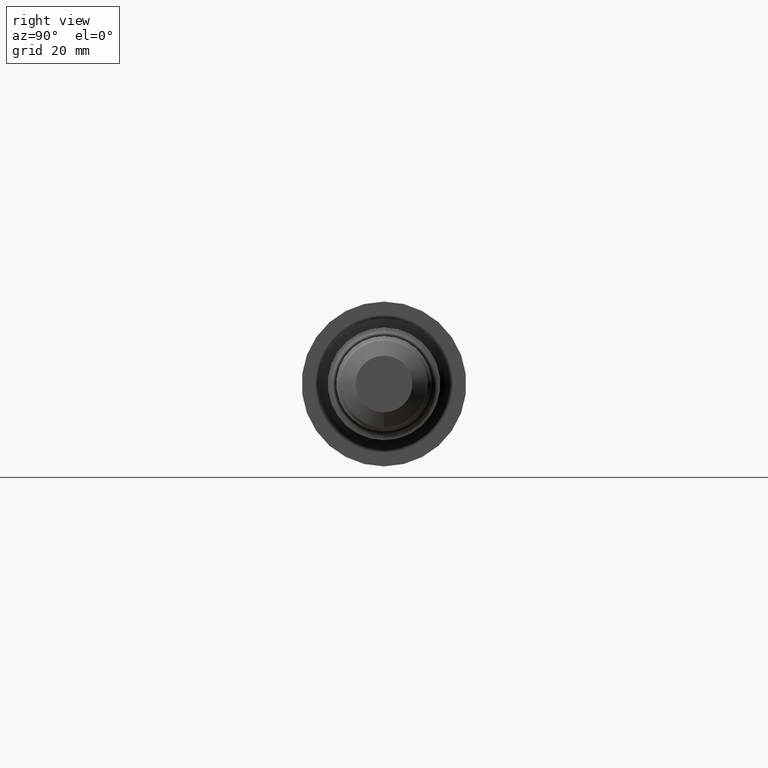
[diagram: clean part render]
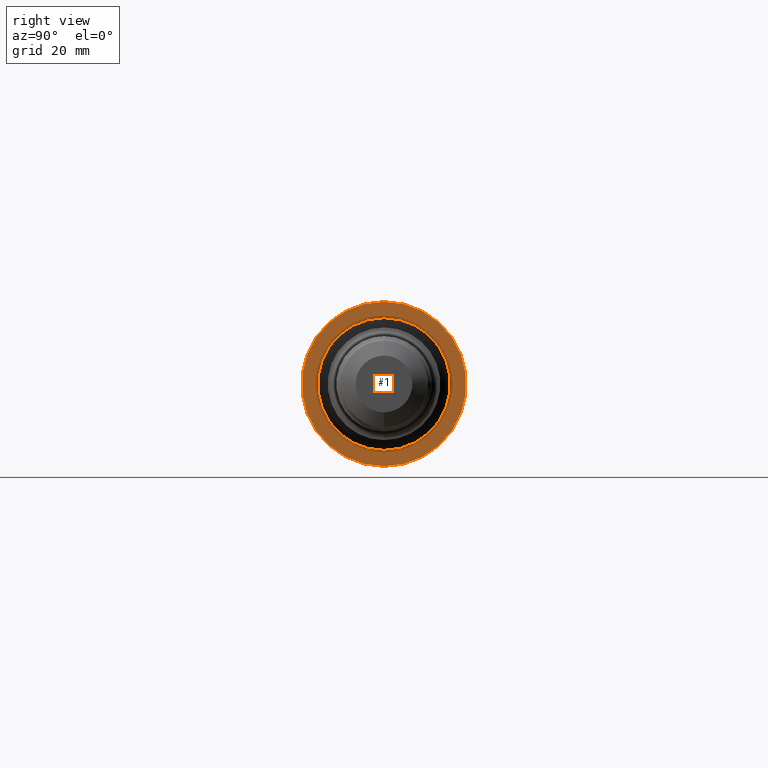
[diagram: same view with one face highlighted and labeled with its STEP entity id]
A machine part, right view. The second image highlights one B-rep face of the part: STEP entity #1.
In plain terms, the highlighted planar face has unit normal (-1, 0, -0).
Its self-contained STEP definition (entity closure, byte-faithful):
#1 = ADVANCED_FACE ( 'NONE', ( #759, #676 ), #279, .F. ) ;
#22 = ORIENTED_EDGE ( 'NONE', *, *, #291, .T. ) ;
#53 = DIRECTION ( 'NONE',  ( -1.000000000000000000, -0.0000000000000000000, -0.0000000000000000000 ) ) ;
#67 = ORIENTED_EDGE ( 'NONE', *, *, #369, .F. ) ;
#109 = CARTESIAN_POINT ( 'NONE',  ( 3.065000000000000391, 0.0000000000000000000, 0.0000000000000000000 ) ) ;
#158 = CARTESIAN_POINT ( 'NONE',  ( 3.065000000000000391, 7.274401986935277967E-17, -0.5939999999999999725 ) ) ;
#233 = DIRECTION ( 'NONE',  ( -1.000000000000000000, -0.0000000000000000000, -0.0000000000000000000 ) ) ;
#250 = DIRECTION ( 'NONE',  ( 0.0000000000000000000, 0.0000000000000000000, 1.000000000000000000 ) ) ;
#279 = PLANE ( 'NONE',  #629 ) ;
#288 = VERTEX_POINT ( 'NONE', #754 ) ;
#290 = DIRECTION ( 'NONE',  ( -0.0000000000000000000, 0.0000000000000000000, 1.000000000000000000 ) ) ;
#291 = EDGE_CURVE ( 'NONE', #843, #835, #412, .T. ) ;
#333 = VERTEX_POINT ( 'NONE', #158 ) ;
#348 = AXIS2_PLACEMENT_3D ( 'NONE', #523, #762, #250 ) ;
#356 = CIRCLE ( 'NONE', #948, 0.5939999999999999725 ) ;
#369 = EDGE_CURVE ( 'NONE', #288, #333, #946, .T. ) ;
#373 = CARTESIAN_POINT ( 'NONE',  ( 3.065000000000000391, 0.5939999999999999725, 0.0000000000000000000 ) ) ;
#412 = CIRCLE ( 'NONE', #663, 0.4782549524098421156 ) ;
#439 = AXIS2_PLACEMENT_3D ( 'NONE', #928, #747, #851 ) ;
#493 = DIRECTION ( 'NONE',  ( 0.0000000000000000000, 0.0000000000000000000, 1.000000000000000000 ) ) ;
#523 = CARTESIAN_POINT ( 'NONE',  ( 3.065000000000000391, 0.0000000000000000000, 0.0000000000000000000 ) ) ;
#559 = CIRCLE ( 'NONE', #439, 0.4782549524098421156 ) ;
#588 = EDGE_CURVE ( 'NONE', #333, #288, #356, .T. ) ;
#629 = AXIS2_PLACEMENT_3D ( 'NONE', #373, #633, #290 ) ;
#633 = DIRECTION ( 'NONE',  ( -1.000000000000000000, 0.0000000000000000000, -0.0000000000000000000 ) ) ;
#663 = AXIS2_PLACEMENT_3D ( 'NONE', #666, #233, #821 ) ;
#666 = CARTESIAN_POINT ( 'NONE',  ( 3.065000000000000391, 0.0000000000000000000, 0.0000000000000000000 ) ) ;
#676 = FACE_BOUND ( 'NONE', #842, .T. ) ;
#678 = EDGE_LOOP ( 'NONE', ( #67, #761 ) ) ;
#714 = CARTESIAN_POINT ( 'NONE',  ( 3.065000000000000391, 0.0000000000000000000, 0.4782549524098421156 ) ) ;
#747 = DIRECTION ( 'NONE',  ( -1.000000000000000000, -0.0000000000000000000, -0.0000000000000000000 ) ) ;
#754 = CARTESIAN_POINT ( 'NONE',  ( 3.065000000000000391, 0.0000000000000000000, 0.5939999999999999725 ) ) ;
#759 = FACE_OUTER_BOUND ( 'NONE', #678, .T. ) ;
#761 = ORIENTED_EDGE ( 'NONE', *, *, #588, .F. ) ;
#762 = DIRECTION ( 'NONE',  ( -1.000000000000000000, -0.0000000000000000000, -0.0000000000000000000 ) ) ;
#767 = EDGE_CURVE ( 'NONE', #835, #843, #559, .T. ) ;
#772 = ORIENTED_EDGE ( 'NONE', *, *, #767, .T. ) ;
#821 = DIRECTION ( 'NONE',  ( 0.0000000000000000000, 0.0000000000000000000, 1.000000000000000000 ) ) ;
#835 = VERTEX_POINT ( 'NONE', #714 ) ;
#842 = EDGE_LOOP ( 'NONE', ( #772, #22 ) ) ;
#843 = VERTEX_POINT ( 'NONE', #884 ) ;
#851 = DIRECTION ( 'NONE',  ( 0.0000000000000000000, 0.0000000000000000000, 1.000000000000000000 ) ) ;
#884 = CARTESIAN_POINT ( 'NONE',  ( 3.065000000000000391, 5.856933966450829514E-17, -0.4782549524098421156 ) ) ;
#928 = CARTESIAN_POINT ( 'NONE',  ( 3.065000000000000391, 0.0000000000000000000, 0.0000000000000000000 ) ) ;
#946 = CIRCLE ( 'NONE', #348, 0.5939999999999999725 ) ;
#948 = AXIS2_PLACEMENT_3D ( 'NONE', #109, #53, #493 ) ;